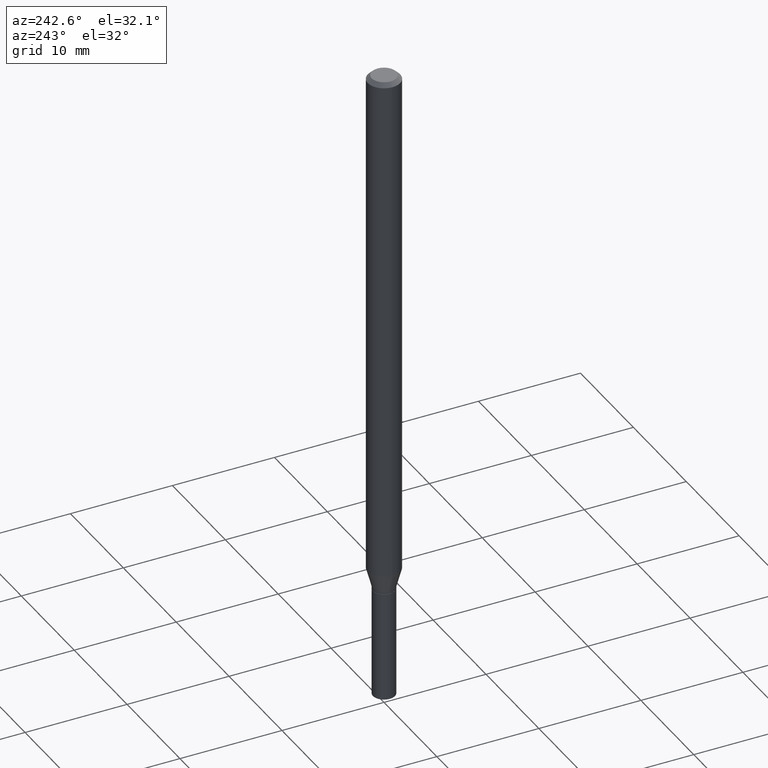
[diagram: clean part render]
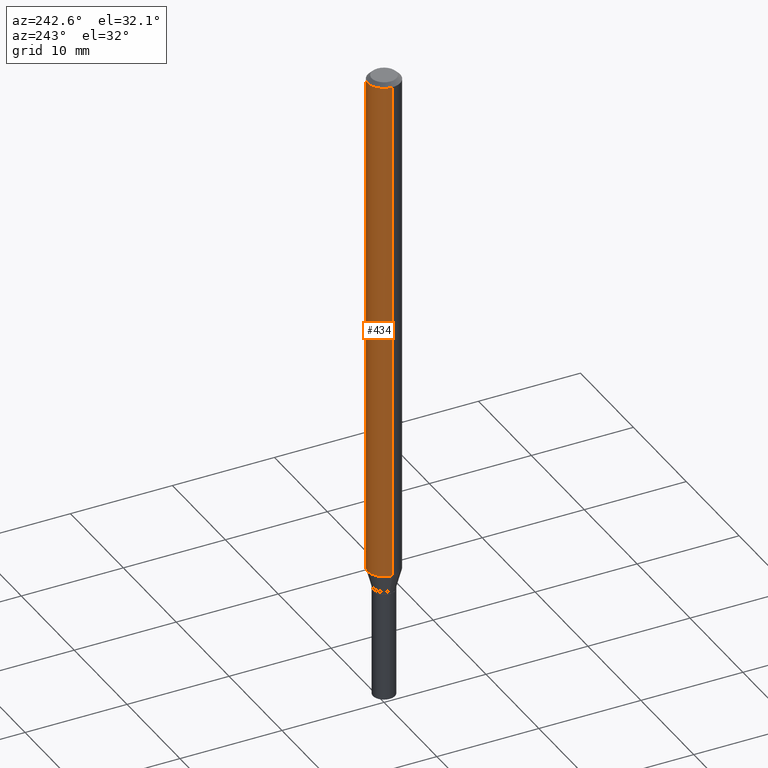
[diagram: same view with one face highlighted and labeled with its STEP entity id]
A machine part, auxiliary view. The second image highlights one B-rep face of the part: STEP entity #434.
In plain terms, the highlighted cylindrical surface (edge-blend (fillet) strip) has radius 1.5875 mm, axis along (-0, 0, 1).
Its self-contained STEP definition (entity closure, byte-faithful):
#19 = DIRECTION ( 'NONE',  ( -2.445468806185136597E-29, 3.491481338843145583E-15, 1.000000000000000000 ) ) ;
#31 = AXIS2_PLACEMENT_3D ( 'NONE', #249, #119, #290 ) ;
#36 = CARTESIAN_POINT ( 'NONE',  ( 0.06250000000000000000, -4.888073874380388472E-16, -0.01499999999999999944 ) ) ;
#56 = CARTESIAN_POINT ( 'NONE',  ( 3.668203209277705088E-31, -5.237222008264718399E-17, -0.01499999999999999944 ) ) ;
#62 = DIRECTION ( 'NONE',  ( -2.445468806185136877E-29, 3.491481338843145188E-15, 1.000000000000000000 ) ) ;
#70 = CARTESIAN_POINT ( 'NONE',  ( 0.06250000000000000000, -4.364351673553916694E-16, 3.047610484872459871E-30 ) ) ;
#74 = EDGE_CURVE ( 'NONE', #245, #260, #242, .T. ) ;
#91 = DIRECTION ( 'NONE',  ( -2.445468806185136877E-29, 3.491481338843145188E-15, 1.000000000000000000 ) ) ;
#93 = VECTOR ( 'NONE', #91, 39.37007874015748143 ) ;
#96 = DIRECTION ( 'NONE',  ( 1.000000000000000000, -6.982962677686266711E-15, 0.000000000000000000 ) ) ;
#100 = CARTESIAN_POINT ( 'NONE',  ( 0.000000000000000000, 0.000000000000000000, 0.000000000000000000 ) ) ;
#109 = EDGE_LOOP ( 'NONE', ( #396, #200, #262, #264 ) ) ;
#119 = DIRECTION ( 'NONE',  ( -2.445468806185136597E-29, 3.491481338843145583E-15, 1.000000000000000000 ) ) ;
#127 = CARTESIAN_POINT ( 'NONE',  ( -0.06250000000000000000, 4.440892098500626162E-16, -3.074334431409316114E-30 ) ) ;
#150 = DIRECTION ( 'NONE',  ( 1.000000000000000000, -6.982962677686266711E-15, 4.876176775795935793E-29 ) ) ;
#153 = CARTESIAN_POINT ( 'NONE',  ( 0.06250000000000000000, -7.385736417061658629E-15, -1.990358983848621310 ) ) ;
#200 = ORIENTED_EDGE ( 'NONE', *, *, #389, .T. ) ;
#221 = CARTESIAN_POINT ( 'NONE',  ( -0.06250000000000000000, -3.056747525044394995E-15, -0.01499999999999999944 ) ) ;
#235 = DIRECTION ( 'NONE',  ( -2.445468806185136597E-29, 3.491481338843145583E-15, 1.000000000000000000 ) ) ;
#242 = LINE ( 'NONE', #70, #346 ) ;
#245 = VERTEX_POINT ( 'NONE', #153 ) ;
#249 = CARTESIAN_POINT ( 'NONE',  ( 4.867360808112149424E-29, -6.949301249706266959E-15, -1.990358983848621310 ) ) ;
#260 = VERTEX_POINT ( 'NONE', #36 ) ;
#262 = ORIENTED_EDGE ( 'NONE', *, *, #429, .F. ) ;
#264 = ORIENTED_EDGE ( 'NONE', *, *, #74, .F. ) ;
#273 = FACE_OUTER_BOUND ( 'NONE', #109, .T. ) ;
#290 = DIRECTION ( 'NONE',  ( 1.000000000000000000, -6.982962677686262766E-15, 0.000000000000000000 ) ) ;
#307 = LINE ( 'NONE', #127, #93 ) ;
#312 = AXIS2_PLACEMENT_3D ( 'NONE', #100, #235, #150 ) ;
#346 = VECTOR ( 'NONE', #62, 39.37007874015748143 ) ;
#351 = CARTESIAN_POINT ( 'NONE',  ( -0.06250000000000000000, -6.505212039856205132E-15, -1.990358983848621310 ) ) ;
#377 = CIRCLE ( 'NONE', #31, 0.06250000000000000000 ) ;
#389 = EDGE_CURVE ( 'NONE', #393, #446, #307, .T. ) ;
#393 = VERTEX_POINT ( 'NONE', #351 ) ;
#396 = ORIENTED_EDGE ( 'NONE', *, *, #450, .T. ) ;
#399 = CIRCLE ( 'NONE', #457, 0.06250000000000000000 ) ;
#423 = CYLINDRICAL_SURFACE ( 'NONE', #312, 0.06250000000000000000 ) ;
#429 = EDGE_CURVE ( 'NONE', #260, #446, #399, .T. ) ;
#434 = ADVANCED_FACE ( 'NONE', ( #273 ), #423, .T. ) ;
#446 = VERTEX_POINT ( 'NONE', #221 ) ;
#450 = EDGE_CURVE ( 'NONE', #245, #393, #377, .T. ) ;
#457 = AXIS2_PLACEMENT_3D ( 'NONE', #56, #19, #96 ) ;